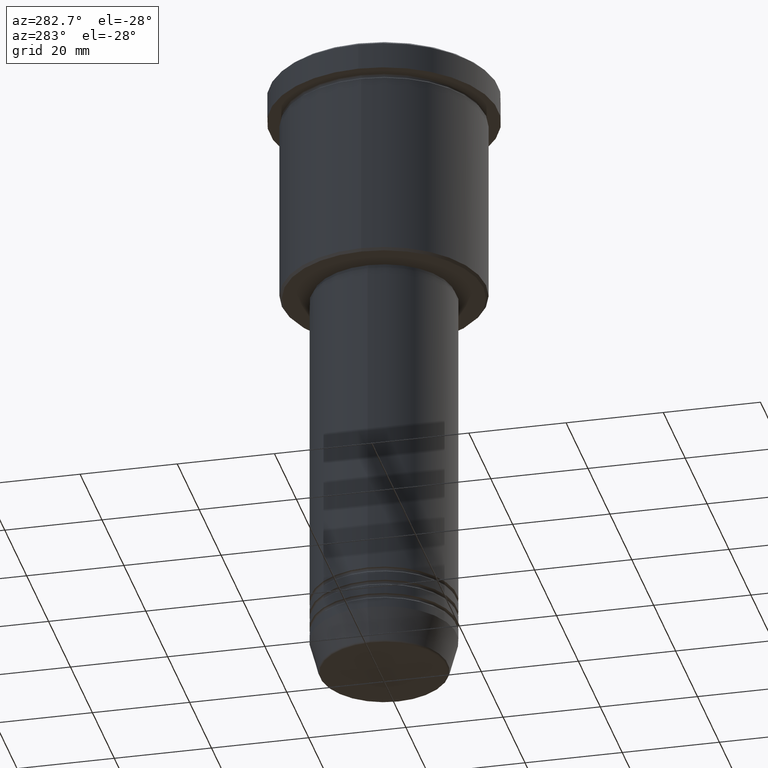
[diagram: clean part render]
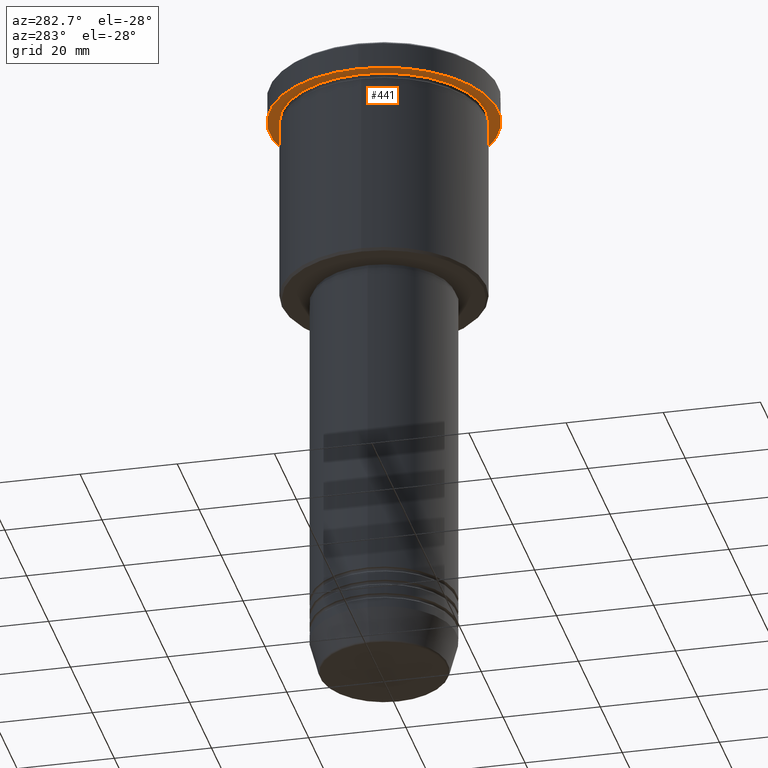
[diagram: same view with one face highlighted and labeled with its STEP entity id]
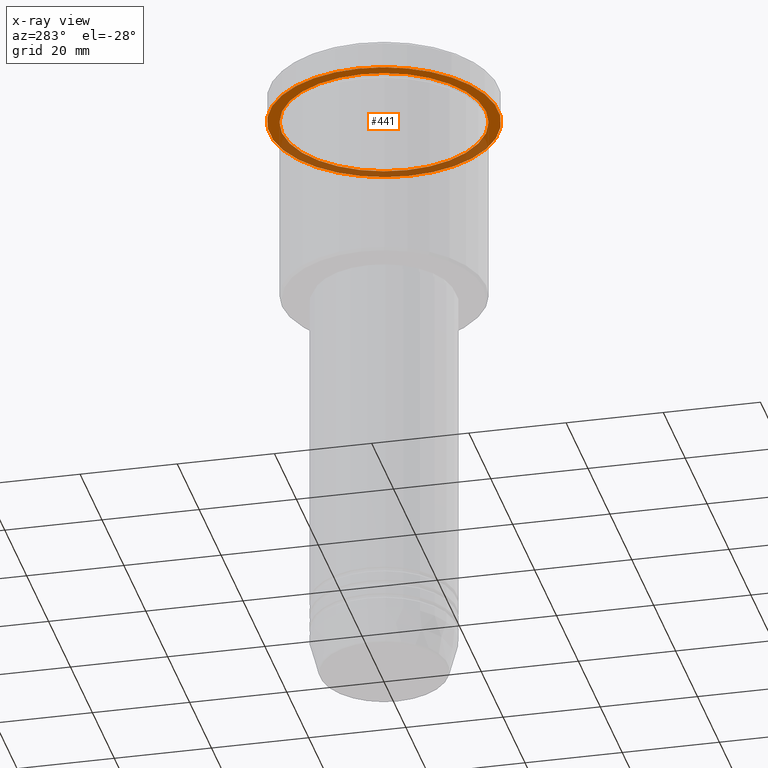
[diagram: x-ray of the same camera — body ghosted, the highlighted face saturated]
A machine part, auxiliary view. The second image highlights one B-rep face of the part: STEP entity #441.
The next image is the same camera in x-ray: the body ghosted, the highlighted face saturated — about 38% of this face is hidden behind the body in this view.
In plain terms, the highlighted planar face has unit normal (0, 0, -1).
Its self-contained STEP definition (entity closure, byte-faithful):
#102 = AXIS2_PLACEMENT_3D ( 'NONE', #765, #303, #852 ) ;
#128 = EDGE_LOOP ( 'NONE', ( #711, #811 ) ) ;
#151 = VERTEX_POINT ( 'NONE', #601 ) ;
#228 = DIRECTION ( 'NONE',  ( -0.000000000000000000, -0.000000000000000000, 1.000000000000000000 ) ) ;
#236 = DIRECTION ( 'NONE',  ( 1.000000000000000000, 0.000000000000000000, 0.000000000000000000 ) ) ;
#279 = CARTESIAN_POINT ( 'NONE',  ( 23.50000000000000000, 0.000000000000000000, -5.999999999999994671 ) ) ;
#285 = EDGE_LOOP ( 'NONE', ( #1098, #928 ) ) ;
#303 = DIRECTION ( 'NONE',  ( -0.000000000000000000, -0.000000000000000000, 1.000000000000000000 ) ) ;
#319 = CARTESIAN_POINT ( 'NONE',  ( 0.000000000000000000, 0.000000000000000000, -5.999999999999994671 ) ) ;
#424 = AXIS2_PLACEMENT_3D ( 'NONE', #548, #831, #941 ) ;
#441 = ADVANCED_FACE ( 'NONE', ( #851, #456 ), #1000, .T. ) ;
#456 = FACE_OUTER_BOUND ( 'NONE', #285, .T. ) ;
#489 = DIRECTION ( 'NONE',  ( -1.000000000000000000, 0.000000000000000000, 0.000000000000000000 ) ) ;
#522 = CIRCLE ( 'NONE', #779, 23.50000000000000000 ) ;
#548 = CARTESIAN_POINT ( 'NONE',  ( 0.000000000000000000, 23.50000000000000000, -5.999999999999994671 ) ) ;
#554 = EDGE_CURVE ( 'NONE', #1014, #636, #931, .T. ) ;
#595 = EDGE_CURVE ( 'NONE', #151, #1027, #522, .T. ) ;
#601 = CARTESIAN_POINT ( 'NONE',  ( -23.50000000000000000, 2.877919977996280320E-15, -5.999999999999994671 ) ) ;
#636 = VERTEX_POINT ( 'NONE', #880 ) ;
#711 = ORIENTED_EDGE ( 'NONE', *, *, #554, .T. ) ;
#724 = DIRECTION ( 'NONE',  ( -0.000000000000000000, -0.000000000000000000, 1.000000000000000000 ) ) ;
#765 = CARTESIAN_POINT ( 'NONE',  ( 0.000000000000000000, 0.000000000000000000, -5.999999999999994671 ) ) ;
#779 = AXIS2_PLACEMENT_3D ( 'NONE', #1133, #228, #236 ) ;
#789 = EDGE_CURVE ( 'NONE', #1027, #151, #916, .T. ) ;
#801 = AXIS2_PLACEMENT_3D ( 'NONE', #808, #724, #814 ) ;
#808 = CARTESIAN_POINT ( 'NONE',  ( 0.000000000000000000, 0.000000000000000000, -5.999999999999994671 ) ) ;
#811 = ORIENTED_EDGE ( 'NONE', *, *, #1142, .T. ) ;
#814 = DIRECTION ( 'NONE',  ( -1.000000000000000000, 0.000000000000000000, 0.000000000000000000 ) ) ;
#831 = DIRECTION ( 'NONE',  ( 0.000000000000000000, 0.000000000000000000, -1.000000000000000000 ) ) ;
#851 = FACE_BOUND ( 'NONE', #128, .T. ) ;
#852 = DIRECTION ( 'NONE',  ( 1.000000000000000000, 0.000000000000000000, 0.000000000000000000 ) ) ;
#859 = AXIS2_PLACEMENT_3D ( 'NONE', #319, #945, #489 ) ;
#880 = CARTESIAN_POINT ( 'NONE',  ( 21.00000000000000000, 2.571758278209441661E-15, -5.999999999999994671 ) ) ;
#916 = CIRCLE ( 'NONE', #102, 23.50000000000000000 ) ;
#922 = CARTESIAN_POINT ( 'NONE',  ( -21.00000000000000000, 0.000000000000000000, -5.999999999999994671 ) ) ;
#928 = ORIENTED_EDGE ( 'NONE', *, *, #595, .F. ) ;
#931 = CIRCLE ( 'NONE', #859, 21.00000000000000000 ) ;
#941 = DIRECTION ( 'NONE',  ( -1.000000000000000000, 0.000000000000000000, -0.000000000000000000 ) ) ;
#945 = DIRECTION ( 'NONE',  ( -0.000000000000000000, -0.000000000000000000, 1.000000000000000000 ) ) ;
#1000 = PLANE ( 'NONE',  #424 ) ;
#1014 = VERTEX_POINT ( 'NONE', #922 ) ;
#1027 = VERTEX_POINT ( 'NONE', #279 ) ;
#1055 = CIRCLE ( 'NONE', #801, 21.00000000000000000 ) ;
#1098 = ORIENTED_EDGE ( 'NONE', *, *, #789, .F. ) ;
#1133 = CARTESIAN_POINT ( 'NONE',  ( 0.000000000000000000, 0.000000000000000000, -5.999999999999994671 ) ) ;
#1142 = EDGE_CURVE ( 'NONE', #636, #1014, #1055, .T. ) ;